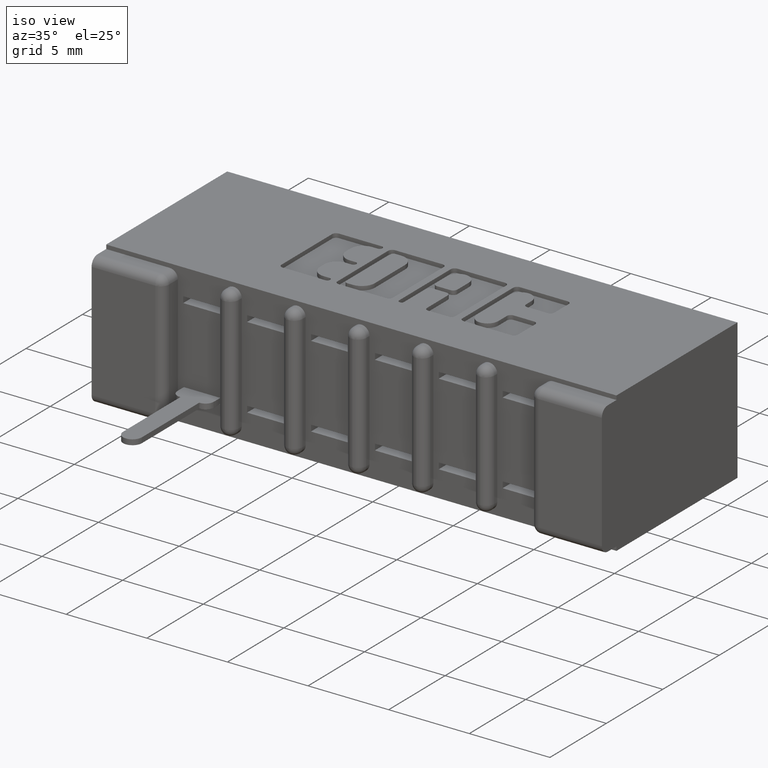
[diagram: clean part render]
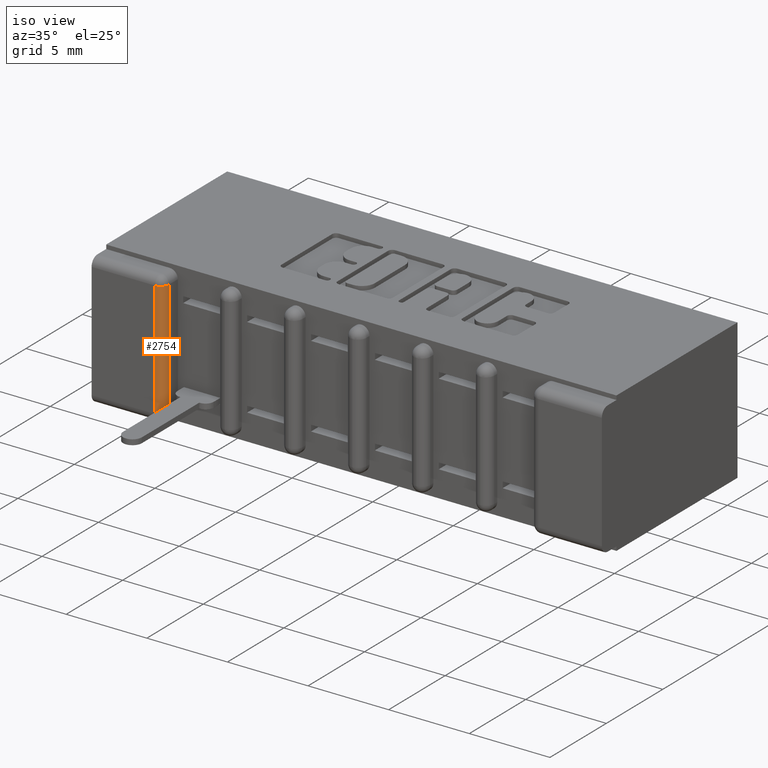
[diagram: same view with one face highlighted and labeled with its STEP entity id]
A machine part, iso view. The second image highlights one B-rep face of the part: STEP entity #2754.
In plain terms, the highlighted cylindrical surface (edge-blend (fillet) strip) has radius 0.508 mm, axis along (-0, 0, 1).
Its self-contained STEP definition (entity closure, byte-faithful):
#79 = EDGE_LOOP ( 'NONE', ( #2280, #2323, #3917, #4622 ) ) ;
#306 = VERTEX_POINT ( 'NONE', #5050 ) ;
#427 = VERTEX_POINT ( 'NONE', #8637 ) ;
#937 = CARTESIAN_POINT ( 'NONE',  ( 0.4730000000000004800, 0.02000000000000000000, -0.03000000000000000600 ) ) ;
#1152 = AXIS2_PLACEMENT_3D ( 'NONE', #1433, #2102, #5787 ) ;
#1338 = CARTESIAN_POINT ( 'NONE',  ( 0.4730000000000004800, 0.02000000000000000000, -0.3130000000000000000 ) ) ;
#1433 = CARTESIAN_POINT ( 'NONE',  ( 0.4530000000000003500, 0.02000000000000000000, -0.3130000000000000000 ) ) ;
#1787 = VECTOR ( 'NONE', #6305, 39.37007874015748100 ) ;
#1847 = LINE ( 'NONE', #8502, #1787 ) ;
#1929 = CARTESIAN_POINT ( 'NONE',  ( 0.4730000000000003100, 0.02000000000000000000, -0.3130000000000000000 ) ) ;
#1948 = VECTOR ( 'NONE', #3858, 39.37007874015748100 ) ;
#2102 = DIRECTION ( 'NONE',  ( -0.0000000000000000000, 0.0000000000000000000, 1.000000000000000000 ) ) ;
#2109 = LINE ( 'NONE', #1929, #1948 ) ;
#2280 = ORIENTED_EDGE ( 'NONE', *, *, #3037, .T. ) ;
#2292 = DIRECTION ( 'NONE',  ( -1.592914282019978600E-015, 0.0000000000000000000, 1.000000000000000000 ) ) ;
#2316 = CARTESIAN_POINT ( 'NONE',  ( 0.4530000000000004000, 0.02000000000000000000, -0.3430000000000000300 ) ) ;
#2323 = ORIENTED_EDGE ( 'NONE', *, *, #5753, .F. ) ;
#2754 = ADVANCED_FACE ( 'NONE', ( #6047 ), #6624, .T. ) ;
#2769 = DIRECTION ( 'NONE',  ( 1.000000000000000000, 0.0000000000000000000, 0.0000000000000000000 ) ) ;
#2932 = VERTEX_POINT ( 'NONE', #937 ) ;
#3017 = CARTESIAN_POINT ( 'NONE',  ( 0.4529999999999999000, 0.02000000000000000000, -0.03000000000000000600 ) ) ;
#3037 = EDGE_CURVE ( 'NONE', #306, #4440, #8884, .T. ) ;
#3068 = EDGE_CURVE ( 'NONE', #427, #2932, #7547, .T. ) ;
#3097 = DIRECTION ( 'NONE',  ( 1.000000000000000000, 0.0000000000000000000, 0.0000000000000000000 ) ) ;
#3114 = DIRECTION ( 'NONE',  ( -0.0000000000000000000, 0.0000000000000000000, 1.000000000000000000 ) ) ;
#3858 = DIRECTION ( 'NONE',  ( 1.592914282019978400E-015, 0.0000000000000000000, -1.000000000000000000 ) ) ;
#3917 = ORIENTED_EDGE ( 'NONE', *, *, #3068, .F. ) ;
#4440 = VERTEX_POINT ( 'NONE', #1338 ) ;
#4622 = ORIENTED_EDGE ( 'NONE', *, *, #5788, .F. ) ;
#5050 = CARTESIAN_POINT ( 'NONE',  ( 0.4530000000000003500, 0.0000000000000000000, -0.3130000000000000000 ) ) ;
#5417 = AXIS2_PLACEMENT_3D ( 'NONE', #3017, #3114, #3097 ) ;
#5661 = AXIS2_PLACEMENT_3D ( 'NONE', #2316, #2292, #2769 ) ;
#5753 = EDGE_CURVE ( 'NONE', #2932, #4440, #2109, .T. ) ;
#5787 = DIRECTION ( 'NONE',  ( 1.000000000000000000, 0.0000000000000000000, 0.0000000000000000000 ) ) ;
#5788 = EDGE_CURVE ( 'NONE', #306, #427, #1847, .T. ) ;
#6047 = FACE_OUTER_BOUND ( 'NONE', #79, .T. ) ;
#6305 = DIRECTION ( 'NONE',  ( -1.592914282019978400E-015, -0.0000000000000000000, 1.000000000000000000 ) ) ;
#6624 = CYLINDRICAL_SURFACE ( 'NONE', #5661, 0.01999999999999999000 ) ;
#7547 = CIRCLE ( 'NONE', #5417, 0.01999999999999999000 ) ;
#8502 = CARTESIAN_POINT ( 'NONE',  ( 0.4529999999999999000, 0.0000000000000000000, -0.03000000000000002300 ) ) ;
#8637 = CARTESIAN_POINT ( 'NONE',  ( 0.4529999999999999000, 0.0000000000000000000, -0.03000000000000000600 ) ) ;
#8884 = CIRCLE ( 'NONE', #1152, 0.01999999999999999000 ) ;